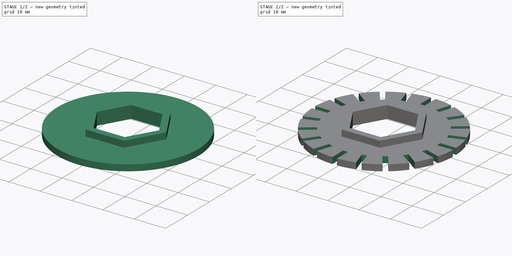
[diagram: build sequence overview — one tinted view per stage of 2, left to right]
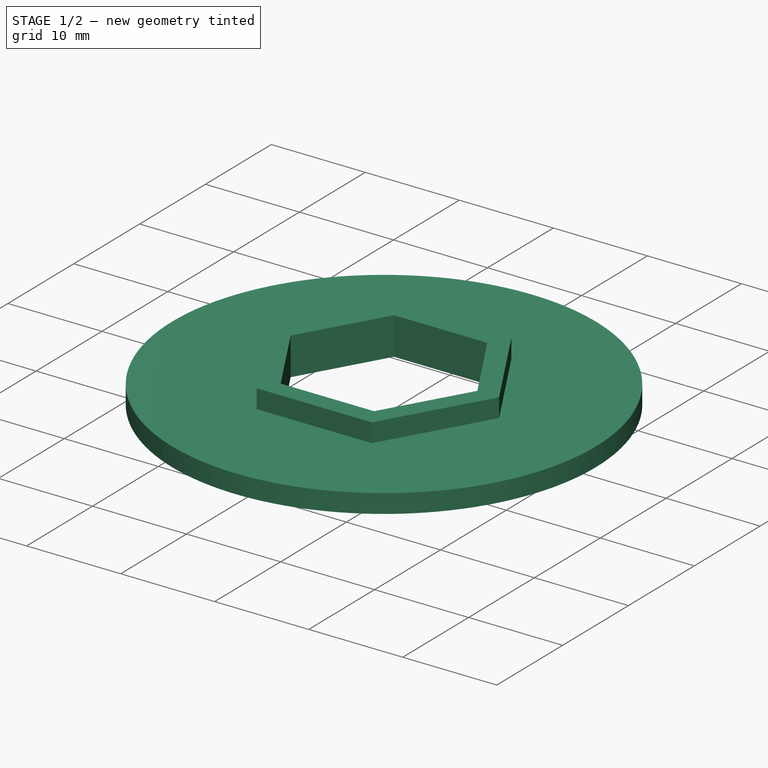
[diagram: stage 1 of 2 — iso view after this stage's code; geometry added in this stage tinted green]
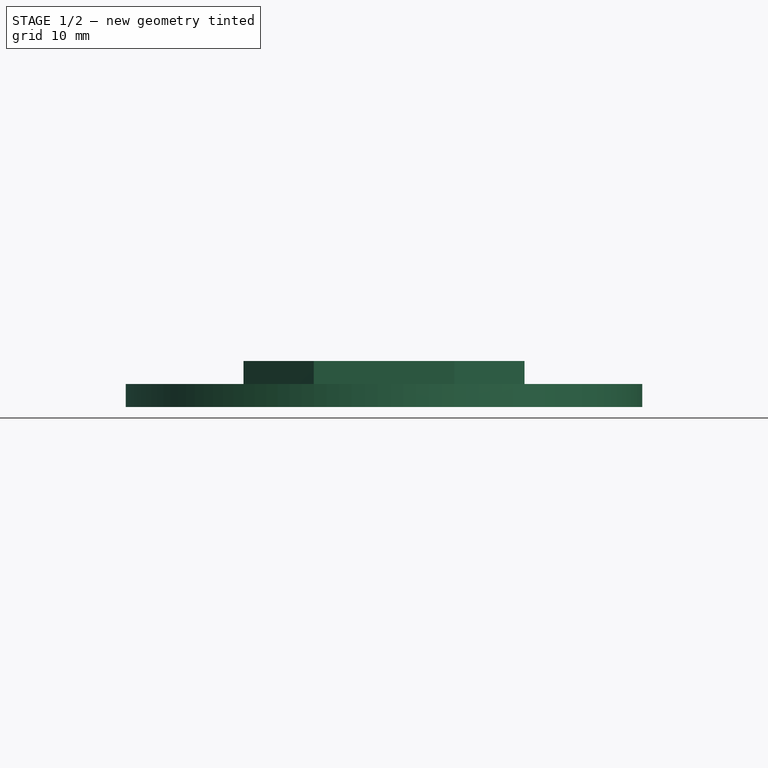
[diagram: stage 1 of 2 — front view after this stage's code; geometry added in this stage tinted green]
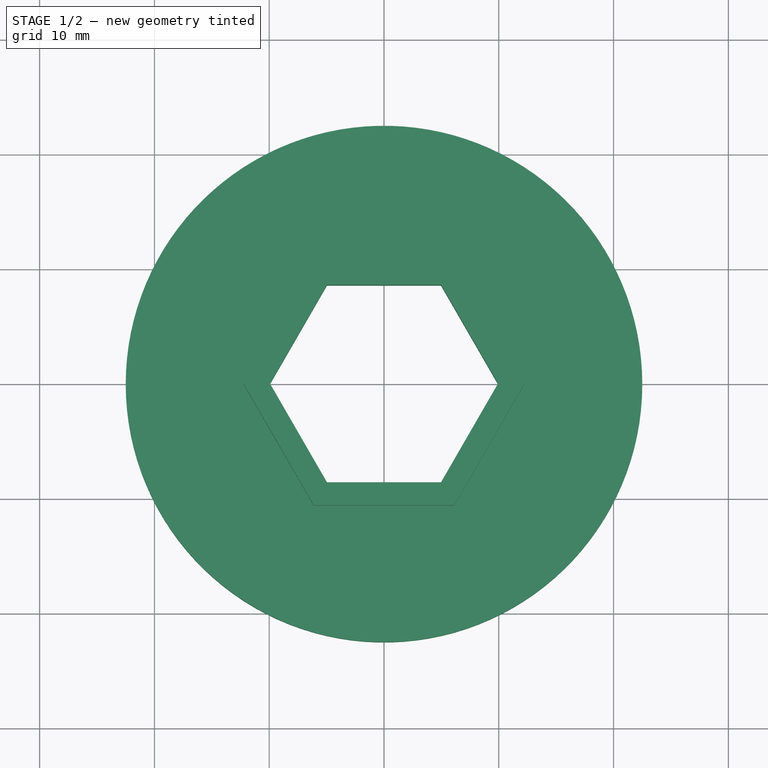
[diagram: stage 1 of 2 — top view after this stage's code; geometry added in this stage tinted green]
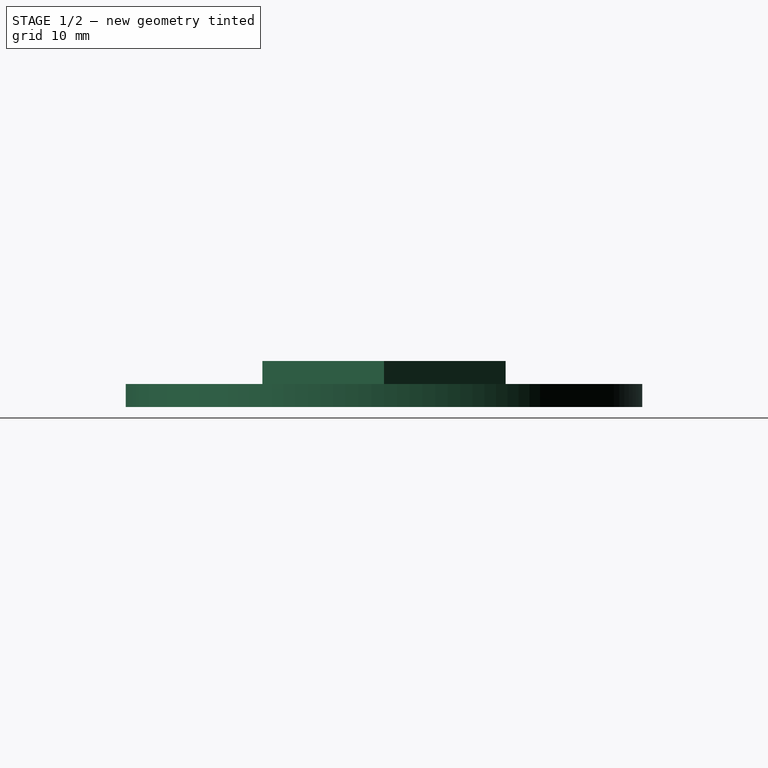
[diagram: stage 1 of 2 — right view after this stage's code; geometry added in this stage tinted green]
FCSTD DOCUMENT  (FreeCAD 0.21R33771 (Git))
Label: encoder
License: All rights reserved
LicenseURL: https://en.wikipedia.org/wiki/All_rights_reserved
objects: Sketcher::SketchObject×3, PartDesign::Pad×2, PartDesign::Pocket×1, PartDesign::PolarPattern×1, PartDesign::Body×1
note: 11 computed .brp shape members not serialized (recipe doc carries the construction recipe); baked Part::Feature solids carry a one-line shape summary decoded from their .brp

FEATURE [Sketcher::SketchObject] Sketch
  FullyConstrained = true
  MapMode = 5
  Support = -> [XY_Plane]
  sketch-geometry (21):
    g0: LineSegment StartX=-4.12805 StartY=-7.15 StartZ=0 EndX=4.12805 EndY=-7.15 EndZ=0
    g1: LineSegment StartX=4.12805 StartY=-7.15 StartZ=0 EndX=8.25611 EndY=-9e-16 EndZ=0
    g2: LineSegment StartX=8.25611 StartY=-9e-16 StartZ=0 EndX=4.12805 EndY=7.15 EndZ=0
    g3: LineSegment StartX=4.12805 StartY=7.15 StartZ=0 EndX=-4.12805 EndY=7.15 EndZ=0
    g4: LineSegment StartX=-4.12805 StartY=7.15 StartZ=0 EndX=-8.25611 EndY=9e-16 EndZ=0
    g5: LineSegment StartX=-8.25611 StartY=7e-16 StartZ=0 EndX=-4.12805 EndY=-7.15 EndZ=0
    g6: Circle CenterX=0 CenterY=0 CenterZ=0 NormalX=0 NormalY=0 NormalZ=1 AngleXU=0 Radius=8.25611
    g7: LineSegment StartX=-4.96521 StartY=8.6 StartZ=0 EndX=-9.93042 EndY=0 EndZ=0
    g8: LineSegment StartX=-9.93042 StartY=0 StartZ=0 EndX=-4.96521 EndY=-8.6 EndZ=0
    g9: LineSegment StartX=-4.96521 StartY=-8.6 StartZ=0 EndX=4.96521 EndY=-8.6 EndZ=0
    g10: LineSegment StartX=4.96521 StartY=-8.6 StartZ=0 EndX=9.93042 EndY=1.8e-15 EndZ=0
    g11: LineSegment StartX=9.93042 StartY=1.8e-15 StartZ=0 EndX=4.96521 EndY=8.6 EndZ=0
    g12: LineSegment StartX=4.96521 StartY=8.6 StartZ=0 EndX=-4.96521 EndY=8.6 EndZ=0
    g13: Circle CenterX=0 CenterY=0 CenterZ=0 NormalX=0 NormalY=0 NormalZ=1 AngleXU=0 Radius=9.93042
    g14: LineSegment StartX=-6.11991 StartY=10.6 StartZ=0 EndX=-12.2398 EndY=0 EndZ=0
    g15: LineSegment StartX=-12.2398 StartY=0 StartZ=0 EndX=-6.11991 EndY=-10.6 EndZ=0
    g16: LineSegment StartX=-6.11991 StartY=-10.6 StartZ=0 EndX=6.11991 EndY=-10.6 EndZ=0
    g17: LineSegment StartX=6.11991 StartY=-10.6 StartZ=0 EndX=12.2398 EndY=0 EndZ=0
    g18: LineSegment StartX=12.2398 StartY=0 StartZ=0 EndX=6.11991 EndY=10.6 EndZ=0
    g19: LineSegment StartX=6.11991 StartY=10.6 StartZ=0 EndX=-6.11991 EndY=10.6 EndZ=0
    g20: Circle CenterX=0 CenterY=0 CenterZ=0 NormalX=0 NormalY=0 NormalZ=1 AngleXU=0 Radius=12.2398
  constraints (48):
    c: Coincident(g0,g1)
    c: Coincident(g1,g2)
    c: Coincident(g2,g3)
    c: Coincident(g3,g4)
    c: Coincident(g4,g5)
    c: Coincident(g5,g0)
    c: Equal(g0, g1-g5) x5
    c: PointOnObject(g0,g6)
    c: PointOnObject(g1,g6)
    c: PointOnObject(g2,g6)
    c: PointOnObject(g3,g6)
    c: PointOnObject(g4,g6)
    c: PointOnObject(g5,g6)
    c: Coincident(g6,g-1)
    c: Horizontal(g3)
    c: DistanceY(g0,g2) = 14.3
    c: Coincident(g7,g8)
    c: Coincident(g8,g9)
    c: Coincident(g9,g10)
    c: Coincident(g10,g11)
    c: Coincident(g11,g12)
    c: Coincident(g12,g7)
    c: Equal(g7, g8-g12) x5
    c: PointOnObject(g7,g13)
    c: PointOnObject(g8,g13)
    c: PointOnObject(g9,g13)
    c: PointOnObject(g10,g13)
    c: PointOnObject(g11,g13)
    c: PointOnObject(g12,g13)
    c: Coincident(g13,g6)
    c: Horizontal(g12)
    c: DistanceY(g9,g11) = 17.2
    c: Coincident(g14,g15)
    c: Coincident(g15,g16)
    c: Coincident(g16,g17)
    c: Coincident(g17,g18)
    c: Coincident(g18,g19)
    c: Coincident(g19,g14)
    c: Equal(g14, g15-g19) x5
    c: PointOnObject(g14,g20)
    c: PointOnObject(g15,g20)
    c: PointOnObject(g16,g20)
    c: PointOnObject(g17,g20)
    c: PointOnObject(g18,g20)
    c: PointOnObject(g19,g20)
    c: Coincident(g20,g6)
    c: Horizontal(g19)
    c: DistanceY(g7,g14) = 2
FEATURE [PartDesign::Pad] Pad
  Direction = (0,0,1)
  Length = 4
  Length2 = 10
  Profile = -> Sketch
  ReferenceAxis = -> Sketch [N_Axis]
  Type = 0
FEATURE [Sketcher::SketchObject] Sketch001
  ExternalGeometry = -> [Pad]
  FullyConstrained = true
  MapMode = 5
  Placement = pos=(0,0,0) rot=(1,0,0;3.14159rad)
  Support = -> [Pad]
  sketch-geometry (8):
    g0: LineSegment StartX=-6.11991 StartY=10.6 StartZ=0 EndX=-12.2398 EndY=1.8e-15 EndZ=0
    g1: LineSegment StartX=-12.2398 StartY=1.8e-15 StartZ=0 EndX=-6.11991 EndY=-10.6 EndZ=0
    g2: LineSegment StartX=-6.11991 StartY=-10.6 StartZ=0 EndX=6.11991 EndY=-10.6 EndZ=0
    g3: LineSegment StartX=6.11991 StartY=-10.6 StartZ=0 EndX=12.2398 EndY=-1.8e-15 EndZ=0
    g4: LineSegment StartX=12.2398 StartY=-1.8e-15 StartZ=0 EndX=6.11991 EndY=10.6 EndZ=0
    g5: LineSegment StartX=6.11991 StartY=10.6 StartZ=0 EndX=-6.11991 EndY=10.6 EndZ=0
    g6: Circle CenterX=0 CenterY=0 CenterZ=0 NormalX=0 NormalY=0 NormalZ=1 AngleXU=0 Radius=12.2398
    g7: Circle CenterX=0 CenterY=0 CenterZ=0 NormalX=0 NormalY=0 NormalZ=1 AngleXU=0 Radius=22.5
  constraints (17):
    c: Coincident(g0,g1)
    c: Coincident(g1,g2)
    c: Coincident(g2,g3)
    c: Coincident(g3,g4)
    c: Coincident(g4,g5)
    c: Coincident(g5,g0)
    c: Equal(g0, g1-g5) x5
    c: PointOnObject(g0,g6)
    c: PointOnObject(g1,g6)
    c: PointOnObject(g2,g6)
    c: PointOnObject(g3,g6)
    c: PointOnObject(g4,g6)
    c: PointOnObject(g5,g6)
    c: Coincident(g6,g-1)
    c: Coincident(g5,g-4)
    c: Coincident(g7,g6)
    c: Diameter(g7) = 45
FEATURE [PartDesign::Pad] Pad001
  BaseFeature = -> Pad
  Direction = (0,0,-1)
  Length = 2
  Length2 = 10
  Profile = -> Sketch001
  ReferenceAxis = -> Sketch001 [N_Axis]
  Reversed = true
  Type = 0
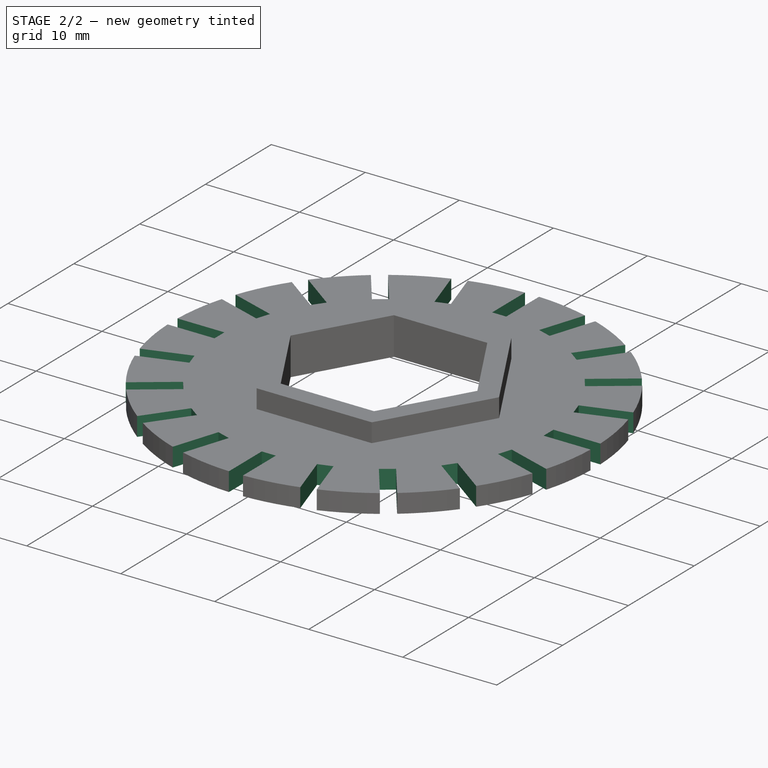
[diagram: stage 2 of 2 — iso view after this stage's code; geometry added in this stage tinted green]
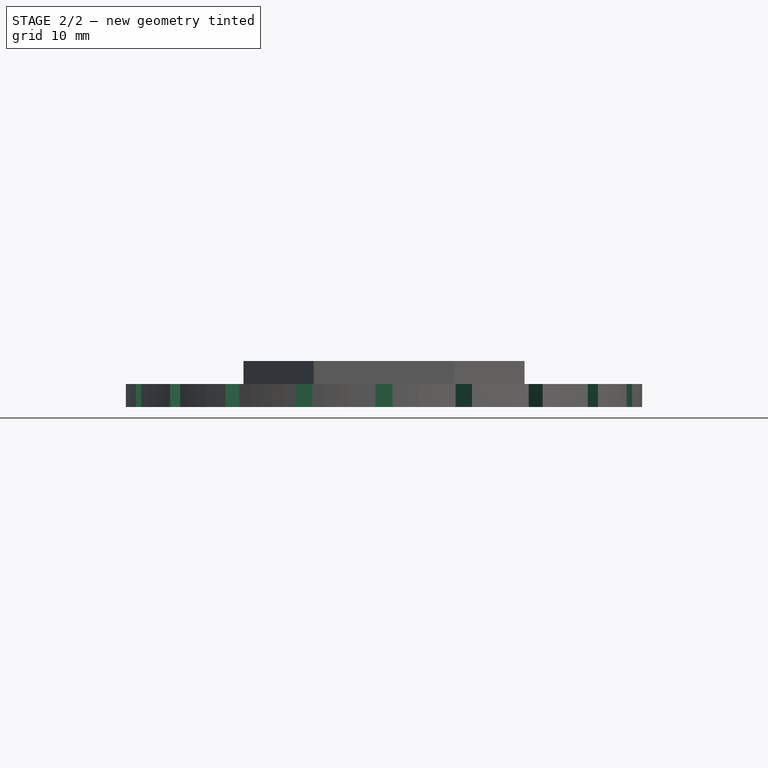
[diagram: stage 2 of 2 — front view after this stage's code; geometry added in this stage tinted green]
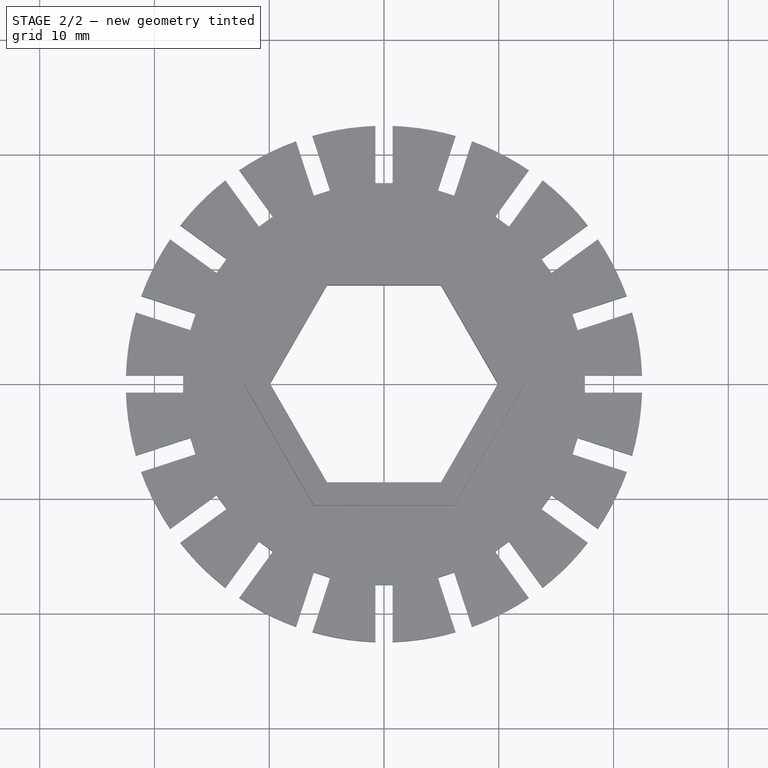
[diagram: stage 2 of 2 — top view after this stage's code; geometry added in this stage tinted green]
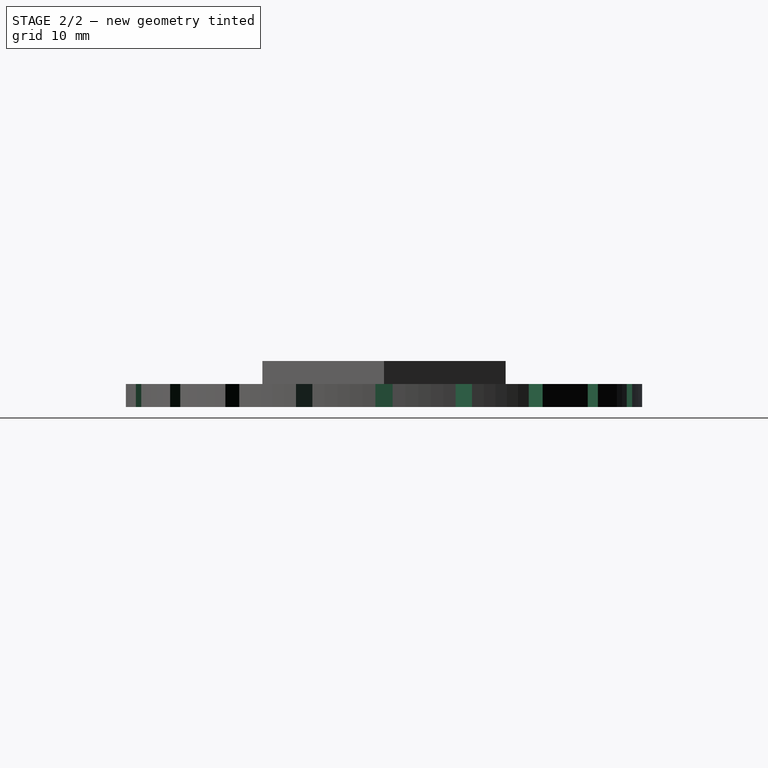
[diagram: stage 2 of 2 — right view after this stage's code; geometry added in this stage tinted green]
FEATURE [Sketcher::SketchObject] Sketch002
  ExternalGeometry = -> [Pad001]
  FullyConstrained = true
  MapMode = 5
  Placement = pos=(0,0,2) rot=(0,0,1;0rad)
  Support = -> [Pad001]
  sketch-geometry (4):
    g0: LineSegment StartX=-0.75 StartY=22.5 StartZ=0 EndX=0.75 EndY=22.5 EndZ=0
    g1: LineSegment StartX=0.75 StartY=22.5 StartZ=0 EndX=0.75 EndY=17.5 EndZ=0
    g2: LineSegment StartX=0.75 StartY=17.5 StartZ=0 EndX=-0.75 EndY=17.5 EndZ=0
    g3: LineSegment StartX=-0.75 StartY=17.5 StartZ=0 EndX=-0.75 EndY=22.5 EndZ=0
  constraints (11):
    c: Coincident(g0,g1)
    c: Coincident(g1,g2)
    c: Coincident(g2,g3)
    c: Coincident(g3,g0)
    c: Horizontal(g2)
    c: Vertical(g1)
    c: Vertical(g3)
    c: Symmetric(g0,g0,g-2)
    c: DistanceX(g0,g0) = 1.5
    c: DistanceY(g2,g0) = 5
    c: Tangent(g0,g-3)
FEATURE [PartDesign::Pocket] Pocket
  BaseFeature = -> Pad001
  Direction = (0,0,-1)
  Length = 5
  Length2 = 5
  Profile = -> Sketch002
  ReferenceAxis = -> Sketch002 [N_Axis]
  Type = 1
FEATURE [PartDesign::PolarPattern] PolarPattern
  Angle = 360
  Axis = -> Z_Axis
  BaseFeature = -> Pocket
  Occurrences = 20
  Originals = -> [Pocket]
FEATURE [PartDesign::Body] Body
  Group = -> [Sketch,Pad,Sketch001,Pad001,Sketch002,Pocket,PolarPattern]
  Origin = -> Origin
  Tip = -> PolarPattern
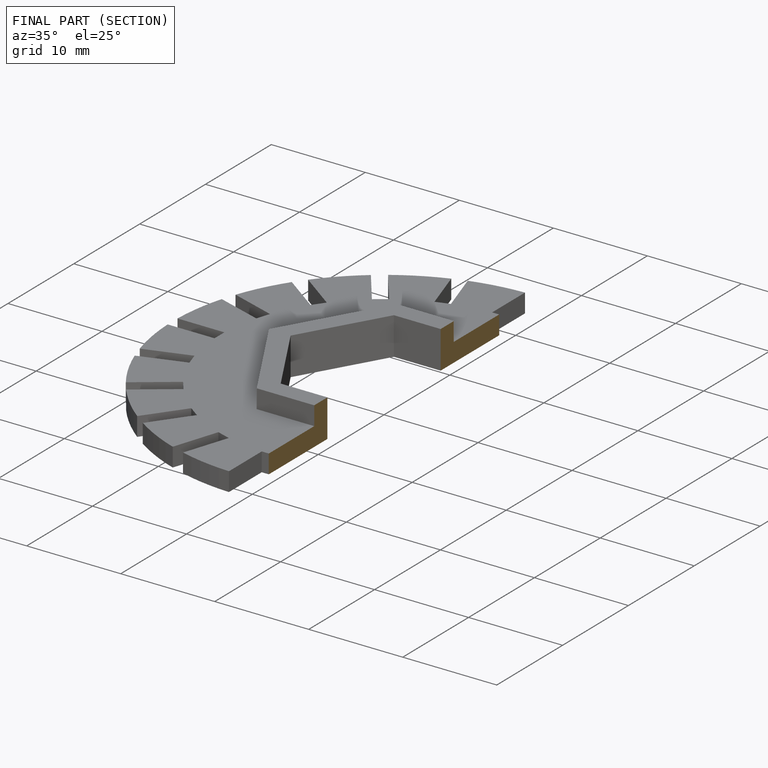
[diagram: finished part — half-section view (interior)]
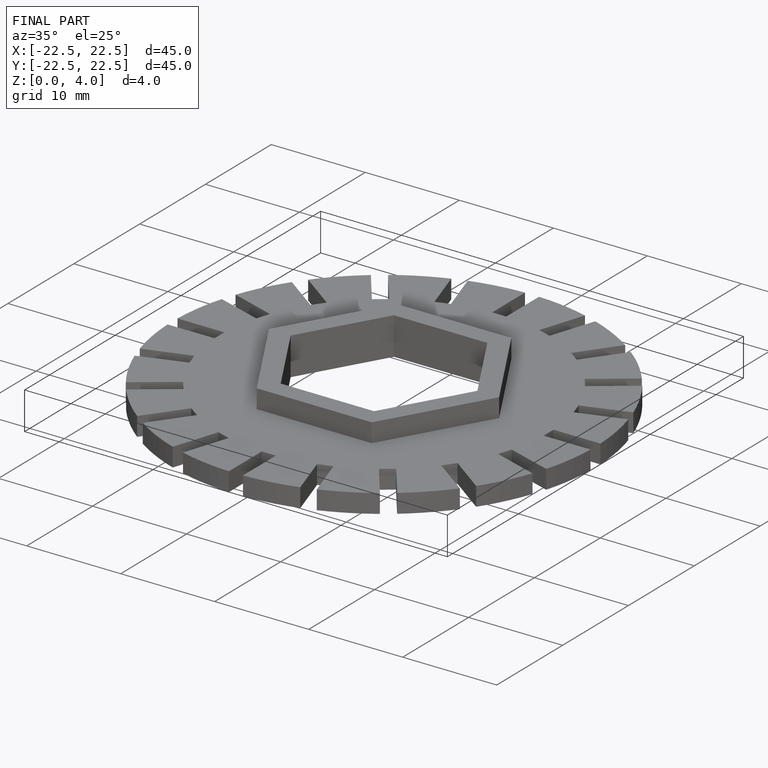
[diagram: finished part — iso view with bounding-box wireframe]
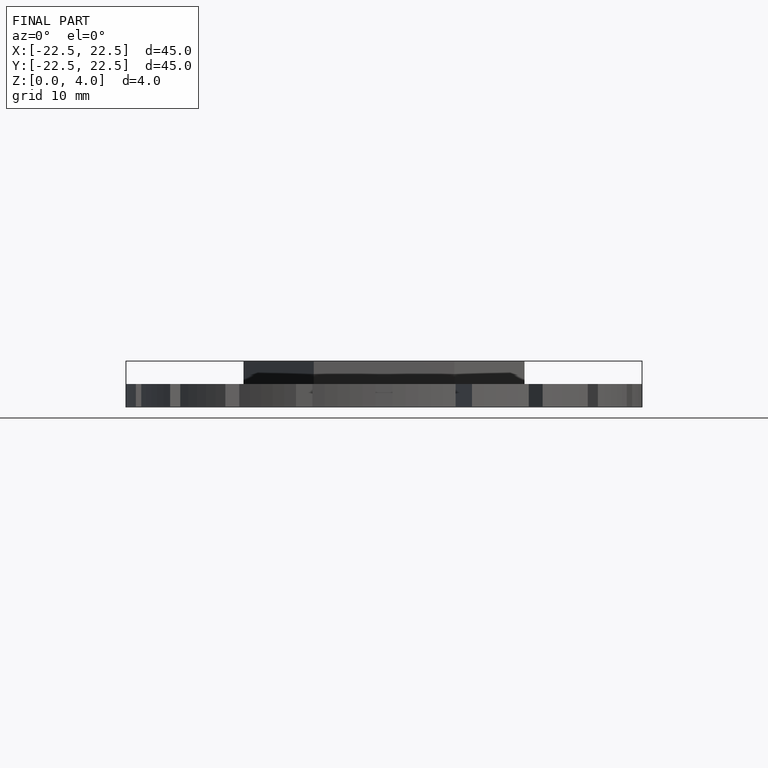
[diagram: finished part — front view with bounding-box wireframe]
